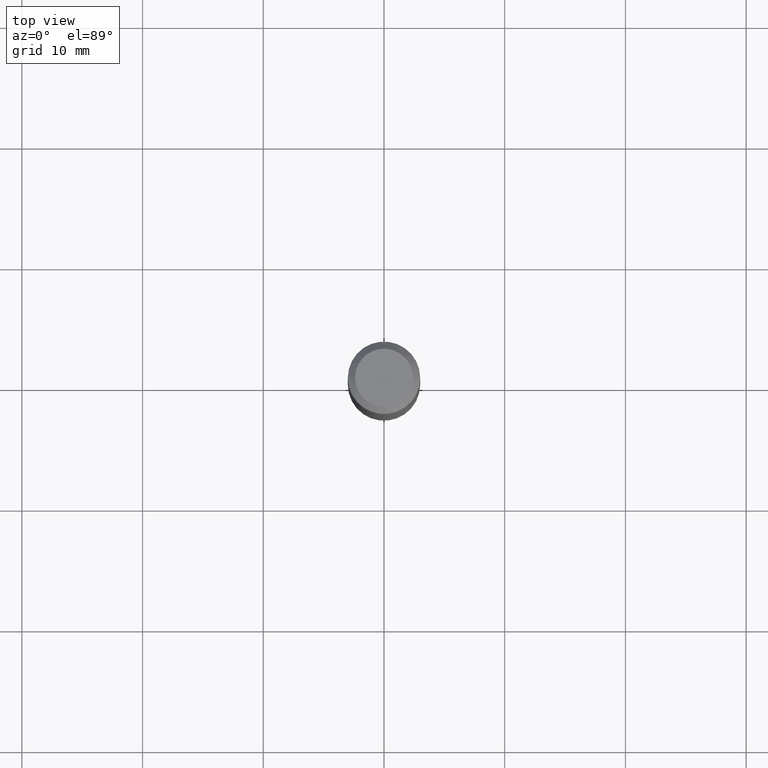
[diagram: clean part render]
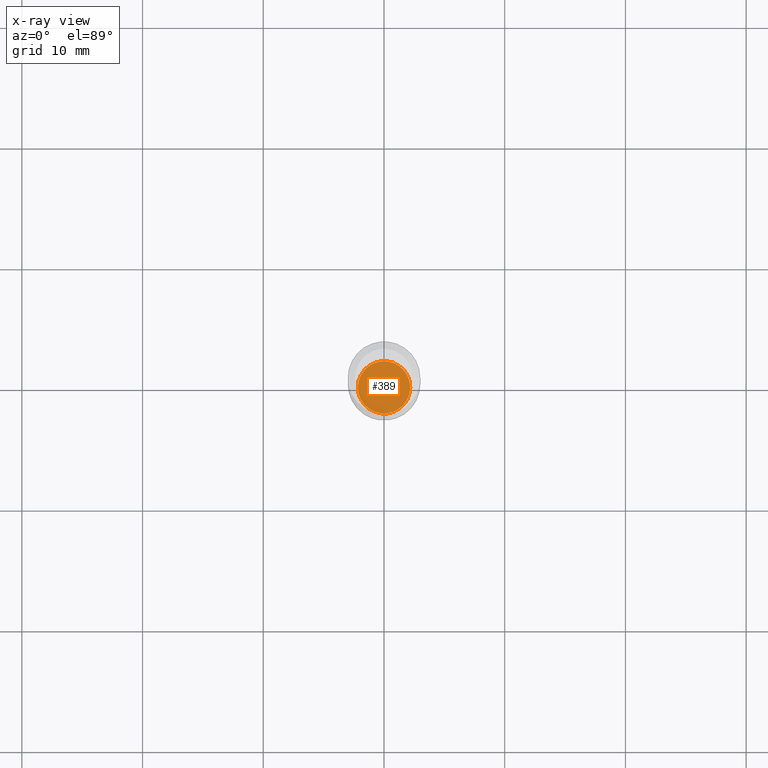
[diagram: x-ray — body ghosted, one internal face saturated and labeled with its STEP entity id]
A machine part, top view, then the same camera in x-ray: the body is ghosted and one INTERNAL B-rep face — a face not visible from any outside direction — is saturated and labeled: STEP entity #389.
In plain terms, the highlighted planar face has unit normal (-0, 0, 1).
Its self-contained STEP definition (entity closure, byte-faithful):
#32 = DIRECTION ( 'NONE',  ( 1.000000000000000000, -6.982962677686265922E-15, 4.876176775795935793E-29 ) ) ;
#52 = DIRECTION ( 'NONE',  ( 1.000000000000000000, -6.982962677686267499E-15, 0.000000000000000000 ) ) ;
#62 = DIRECTION ( 'NONE',  ( -2.445468806185136597E-29, 3.491481338843145583E-15, 1.000000000000000000 ) ) ;
#73 = VERTEX_POINT ( 'NONE', #397 ) ;
#102 = PLANE ( 'NONE',  #452 ) ;
#106 = VERTEX_POINT ( 'NONE', #325 ) ;
#116 = EDGE_CURVE ( 'NONE', #73, #106, #512, .T. ) ;
#154 = DIRECTION ( 'NONE',  ( -2.438088387897960049E-29, 3.491481338843145188E-15, 1.000000000000000000 ) ) ;
#190 = AXIS2_PLACEMENT_3D ( 'NONE', #290, #405, #52 ) ;
#192 = EDGE_CURVE ( 'NONE', #106, #73, #218, .T. ) ;
#193 = EDGE_LOOP ( 'NONE', ( #511, #213 ) ) ;
#213 = ORIENTED_EDGE ( 'NONE', *, *, #192, .F. ) ;
#218 = CIRCLE ( 'NONE', #286, 0.08544999999999998430 ) ;
#270 = FACE_OUTER_BOUND ( 'NONE', #193, .T. ) ;
#286 = AXIS2_PLACEMENT_3D ( 'NONE', #465, #62, #376 ) ;
#290 = CARTESIAN_POINT ( 'NONE',  ( 4.465915133855296004E-29, -6.376143220995352070E-15, -1.826200000000000045 ) ) ;
#325 = CARTESIAN_POINT ( 'NONE',  ( -0.08544999999999998430, -5.766335226114235076E-15, -1.826200000000000045 ) ) ;
#376 = DIRECTION ( 'NONE',  ( 1.000000000000000000, -6.982962677686267499E-15, 0.000000000000000000 ) ) ;
#385 = CARTESIAN_POINT ( 'NONE',  ( 4.465915133855296004E-29, -6.376143220995352070E-15, -1.826200000000000045 ) ) ;
#389 = ADVANCED_FACE ( 'NONE', ( #270 ), #102, .F. ) ;
#397 = CARTESIAN_POINT ( 'NONE',  ( 0.08544999999999998430, -6.972837381803644078E-15, -1.826200000000000045 ) ) ;
#405 = DIRECTION ( 'NONE',  ( -2.445468806185136597E-29, 3.491481338843145583E-15, 1.000000000000000000 ) ) ;
#452 = AXIS2_PLACEMENT_3D ( 'NONE', #385, #154, #32 ) ;
#465 = CARTESIAN_POINT ( 'NONE',  ( 4.465915133855296004E-29, -6.376143220995352070E-15, -1.826200000000000045 ) ) ;
#511 = ORIENTED_EDGE ( 'NONE', *, *, #116, .F. ) ;
#512 = CIRCLE ( 'NONE', #190, 0.08544999999999998430 ) ;